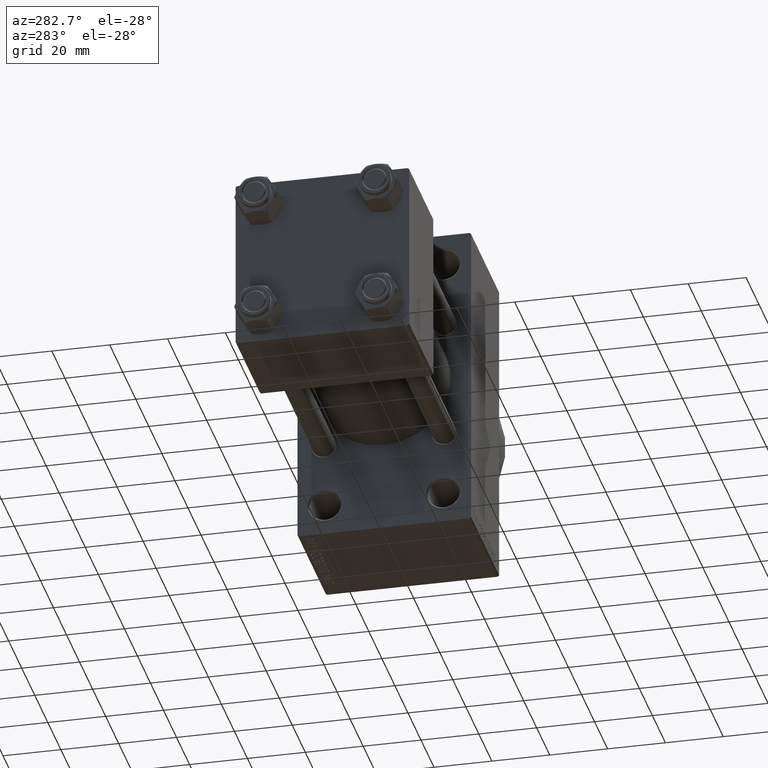
[diagram: clean part render]
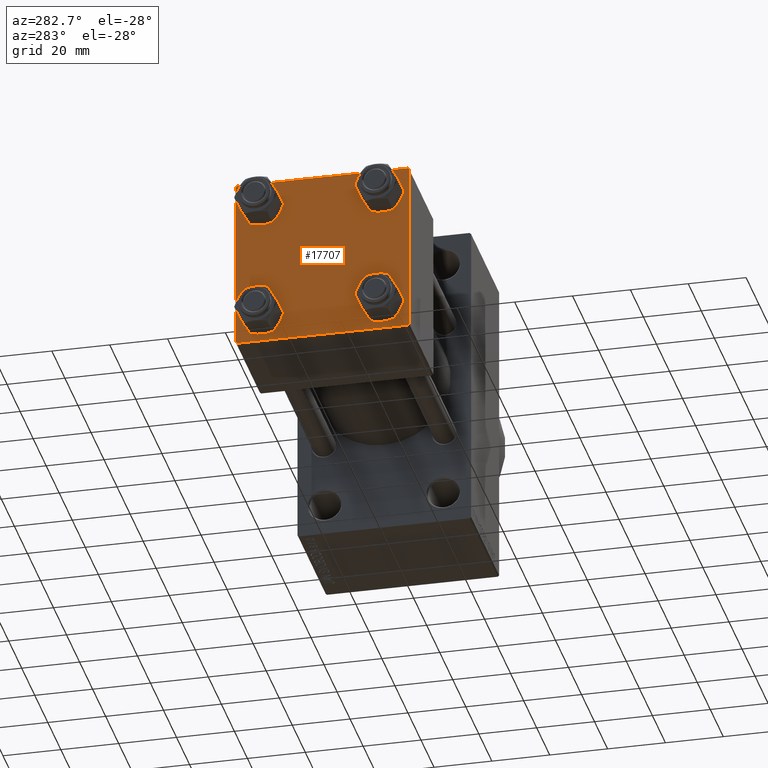
[diagram: same view with one face highlighted and labeled with its STEP entity id]
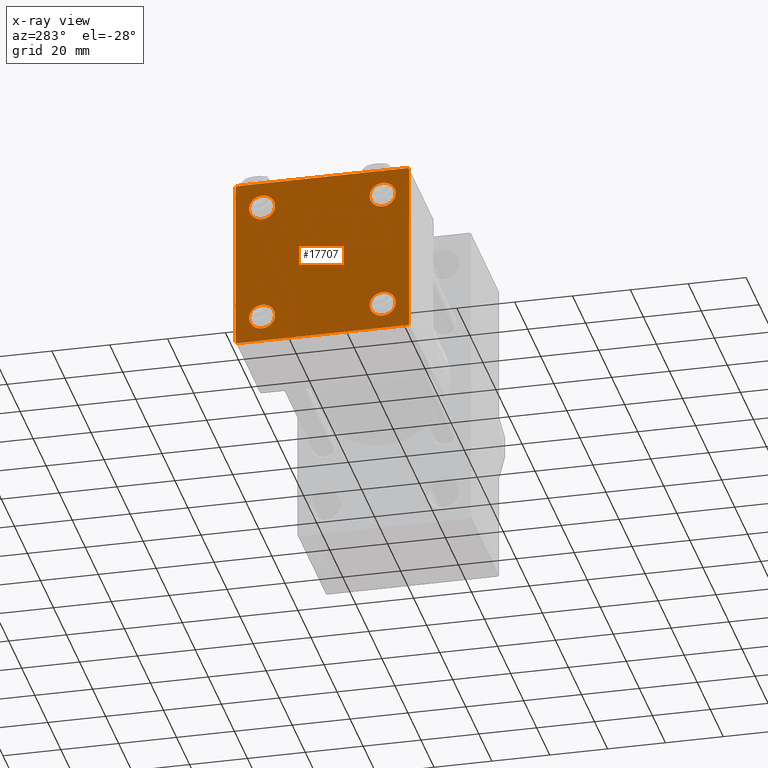
[diagram: x-ray of the same camera — body ghosted, the highlighted face saturated]
A machine part, auxiliary view. The second image highlights one B-rep face of the part: STEP entity #17707.
The next image is the same camera in x-ray: the body ghosted, the highlighted face saturated — about 0% of this face is hidden behind the body in this view.
In plain terms, the highlighted planar face has unit normal (-1, 0, 0).
Its self-contained STEP definition (entity closure, byte-faithful):
#335 = CARTESIAN_POINT ( 'NONE',  ( 0.000000000000000000, -20.84999999999999076, -16.34999999999998721 ) ) ;
#385 = DIRECTION ( 'NONE',  ( 0.000000000000000000, 0.000000000000000000, 1.000000000000000000 ) ) ;
#687 = DIRECTION ( 'NONE',  ( 0.000000000000000000, 0.000000000000000000, 1.000000000000000000 ) ) ;
#866 = DIRECTION ( 'NONE',  ( 0.000000000000000000, 0.000000000000000000, 1.000000000000000000 ) ) ;
#1147 = DIRECTION ( 'NONE',  ( 0.000000000000000000, -1.000000000000000000, -1.156482317317871725E-16 ) ) ;
#1789 = CIRCLE ( 'NONE', #11806, 4.500000000000017764 ) ;
#1887 = VECTOR ( 'NONE', #27286, 1000.000000000000000 ) ;
#2800 = DIRECTION ( 'NONE',  ( 0.000000000000000000, 0.000000000000000000, 1.000000000000000000 ) ) ;
#3005 = AXIS2_PLACEMENT_3D ( 'NONE', #6793, #21475, #36218 ) ;
#3149 = VERTEX_POINT ( 'NONE', #4313 ) ;
#3723 = EDGE_CURVE ( 'NONE', #32925, #3149, #23786, .T. ) ;
#3774 = DIRECTION ( 'NONE',  ( 1.000000000000000000, -0.000000000000000000, 0.000000000000000000 ) ) ;
#3861 = AXIS2_PLACEMENT_3D ( 'NONE', #30034, #33187, #866 ) ;
#4084 = FACE_BOUND ( 'NONE', #8361, .T. ) ;
#4223 = CARTESIAN_POINT ( 'NONE',  ( 0.000000000000000000, 20.84999999999999787, 16.34999999999998366 ) ) ;
#4281 = CARTESIAN_POINT ( 'NONE',  ( 0.000000000000000000, -20.84999999999999076, 25.35000000000002274 ) ) ;
#4313 = CARTESIAN_POINT ( 'NONE',  ( 0.000000000000000000, 20.84999999999999787, -16.34999999999998366 ) ) ;
#4672 = CIRCLE ( 'NONE', #3861, 4.500000000000017764 ) ;
#4735 = AXIS2_PLACEMENT_3D ( 'NONE', #39094, #32304, #17369 ) ;
#4843 = AXIS2_PLACEMENT_3D ( 'NONE', #36812, #3774, #385 ) ;
#5232 = CARTESIAN_POINT ( 'NONE',  ( 0.000000000000000000, 20.84999999999999787, -25.35000000000001918 ) ) ;
#5752 = CIRCLE ( 'NONE', #25008, 4.500000000000017764 ) ;
#6181 = EDGE_CURVE ( 'NONE', #3149, #32925, #4672, .T. ) ;
#6516 = ORIENTED_EDGE ( 'NONE', *, *, #31361, .T. ) ;
#6710 = DIRECTION ( 'NONE',  ( 1.000000000000000000, -0.000000000000000000, 0.000000000000000000 ) ) ;
#6793 = CARTESIAN_POINT ( 'NONE',  ( 0.000000000000000000, 20.84999999999999787, -20.85000000000000142 ) ) ;
#7270 = ORIENTED_EDGE ( 'NONE', *, *, #16821, .T. ) ;
#7461 = VERTEX_POINT ( 'NONE', #335 ) ;
#7929 = FACE_BOUND ( 'NONE', #19450, .T. ) ;
#8096 = CARTESIAN_POINT ( 'NONE',  ( 0.000000000000000000, 29.99999999999999289, -29.50000000000000000 ) ) ;
#8361 = EDGE_LOOP ( 'NONE', ( #23348, #28990 ) ) ;
#8414 = PLANE ( 'NONE',  #28750 ) ;
#8842 = LINE ( 'NONE', #33705, #33368 ) ;
#8885 = CIRCLE ( 'NONE', #27318, 4.500000000000017764 ) ;
#9196 = ORIENTED_EDGE ( 'NONE', *, *, #6181, .T. ) ;
#9390 = ORIENTED_EDGE ( 'NONE', *, *, #37436, .T. ) ;
#10557 = ORIENTED_EDGE ( 'NONE', *, *, #38992, .T. ) ;
#11091 = VERTEX_POINT ( 'NONE', #26796 ) ;
#11278 = DIRECTION ( 'NONE',  ( 0.000000000000000000, 0.000000000000000000, 1.000000000000000000 ) ) ;
#11302 = FACE_OUTER_BOUND ( 'NONE', #31975, .T. ) ;
#11669 = CIRCLE ( 'NONE', #4735, 4.500000000000017764 ) ;
#11806 = AXIS2_PLACEMENT_3D ( 'NONE', #26478, #33971, #687 ) ;
#12118 = CARTESIAN_POINT ( 'NONE',  ( 0.000000000000000000, -20.84999999999999076, 20.85000000000000497 ) ) ;
#12300 = EDGE_CURVE ( 'NONE', #19313, #11091, #11669, .T. ) ;
#12337 = VERTEX_POINT ( 'NONE', #24597 ) ;
#13177 = DIRECTION ( 'NONE',  ( 0.000000000000000000, 0.7071067811865474617, -0.7071067811865474617 ) ) ;
#14128 = LINE ( 'NONE', #46928, #14144 ) ;
#14144 = VECTOR ( 'NONE', #13177, 1000.000000000000114 ) ;
#14412 = CARTESIAN_POINT ( 'NONE',  ( 0.000000000000000000, -20.84999999999999076, -25.35000000000002274 ) ) ;
#15613 = CARTESIAN_POINT ( 'NONE',  ( 0.000000000000000000, -20.84999999999999076, 16.34999999999998721 ) ) ;
#16821 = EDGE_CURVE ( 'NONE', #11091, #19313, #1789, .T. ) ;
#17135 = CIRCLE ( 'NONE', #4843, 4.500000000000017764 ) ;
#17369 = DIRECTION ( 'NONE',  ( 0.000000000000000000, 0.000000000000000000, 1.000000000000000000 ) ) ;
#17707 = ADVANCED_FACE ( 'NONE', ( #22380, #4084, #7929, #41443, #11302 ), #8414, .T. ) ;
#19023 = DIRECTION ( 'NONE',  ( -0.000000000000000000, 0.000000000000000000, 1.000000000000000000 ) ) ;
#19313 = VERTEX_POINT ( 'NONE', #4223 ) ;
#19450 = EDGE_LOOP ( 'NONE', ( #9196, #45382 ) ) ;
#19907 = EDGE_CURVE ( 'NONE', #26064, #26200, #44132, .T. ) ;
#20063 = LINE ( 'NONE', #35497, #39416 ) ;
#20164 = ORIENTED_EDGE ( 'NONE', *, *, #34872, .T. ) ;
#20508 = EDGE_CURVE ( 'NONE', #12337, #26200, #34790, .T. ) ;
#20534 = LINE ( 'NONE', #31618, #35829 ) ;
#20757 = VERTEX_POINT ( 'NONE', #26048 ) ;
#20848 = CARTESIAN_POINT ( 'NONE',  ( 0.000000000000000000, -29.50000000000000000, -30.00000000000000711 ) ) ;
#21377 = EDGE_CURVE ( 'NONE', #23352, #32237, #20534, .T. ) ;
#21475 = DIRECTION ( 'NONE',  ( 1.000000000000000000, -0.000000000000000000, 0.000000000000000000 ) ) ;
#21599 = EDGE_LOOP ( 'NONE', ( #34728, #9390 ) ) ;
#22380 = FACE_BOUND ( 'NONE', #21599, .T. ) ;
#23103 = CARTESIAN_POINT ( 'NONE',  ( 0.000000000000000000, 0.000000000000000000, 0.000000000000000000 ) ) ;
#23348 = ORIENTED_EDGE ( 'NONE', *, *, #31851, .T. ) ;
#23352 = VERTEX_POINT ( 'NONE', #8096 ) ;
#23786 = CIRCLE ( 'NONE', #3005, 4.500000000000017764 ) ;
#24597 = CARTESIAN_POINT ( 'NONE',  ( 0.000000000000000000, -30.00000000000000000, 29.49999999999999289 ) ) ;
#25004 = VECTOR ( 'NONE', #47642, 1000.000000000000114 ) ;
#25008 = AXIS2_PLACEMENT_3D ( 'NONE', #47696, #6710, #11278 ) ;
#25034 = ORIENTED_EDGE ( 'NONE', *, *, #19907, .T. ) ;
#25688 = VERTEX_POINT ( 'NONE', #37680 ) ;
#25800 = CARTESIAN_POINT ( 'NONE',  ( 0.000000000000000000, -29.75000000000001066, -29.75000000000001066 ) ) ;
#26048 = CARTESIAN_POINT ( 'NONE',  ( 0.000000000000000000, -29.49999999999998579, 29.99999999999999289 ) ) ;
#26064 = VERTEX_POINT ( 'NONE', #20848 ) ;
#26200 = VERTEX_POINT ( 'NONE', #47622 ) ;
#26478 = CARTESIAN_POINT ( 'NONE',  ( 0.000000000000000000, 20.84999999999999787, 20.85000000000000142 ) ) ;
#26778 = VERTEX_POINT ( 'NONE', #28683 ) ;
#26796 = CARTESIAN_POINT ( 'NONE',  ( 0.000000000000000000, 20.84999999999999787, 25.35000000000001918 ) ) ;
#26807 = DIRECTION ( 'NONE',  ( 1.000000000000000000, -0.000000000000000000, 0.000000000000000000 ) ) ;
#27286 = DIRECTION ( 'NONE',  ( 0.000000000000000000, 0.000000000000000000, -1.000000000000000000 ) ) ;
#27318 = AXIS2_PLACEMENT_3D ( 'NONE', #12118, #26807, #41533 ) ;
#27991 = CARTESIAN_POINT ( 'NONE',  ( 0.000000000000000000, -30.00000000000000000, 29.99999999999999289 ) ) ;
#28683 = CARTESIAN_POINT ( 'NONE',  ( 0.000000000000000000, 29.99999999999999289, 29.50000000000000000 ) ) ;
#28750 = AXIS2_PLACEMENT_3D ( 'NONE', #23103, #44825, #19023 ) ;
#28860 = AXIS2_PLACEMENT_3D ( 'NONE', #32441, #47155, #2800 ) ;
#28990 = ORIENTED_EDGE ( 'NONE', *, *, #42105, .T. ) ;
#29351 = ORIENTED_EDGE ( 'NONE', *, *, #32838, .F. ) ;
#29839 = LINE ( 'NONE', #40936, #30426 ) ;
#30034 = CARTESIAN_POINT ( 'NONE',  ( 0.000000000000000000, 20.84999999999999787, -20.85000000000000142 ) ) ;
#30426 = VECTOR ( 'NONE', #1147, 1000.000000000000000 ) ;
#31361 = EDGE_CURVE ( 'NONE', #26778, #23352, #20063, .T. ) ;
#31618 = CARTESIAN_POINT ( 'NONE',  ( 0.000000000000000000, 29.74999999999957723, -29.75000000000040501 ) ) ;
#31851 = EDGE_CURVE ( 'NONE', #7461, #40999, #17135, .T. ) ;
#31975 = EDGE_LOOP ( 'NONE', ( #6516, #42913, #10557, #25034, #42667, #40949, #29351, #20164 ) ) ;
#32034 = ORIENTED_EDGE ( 'NONE', *, *, #12300, .T. ) ;
#32237 = VERTEX_POINT ( 'NONE', #36280 ) ;
#32304 = DIRECTION ( 'NONE',  ( 1.000000000000000000, -0.000000000000000000, 0.000000000000000000 ) ) ;
#32441 = CARTESIAN_POINT ( 'NONE',  ( 0.000000000000000000, -20.84999999999999076, -20.85000000000000497 ) ) ;
#32838 = EDGE_CURVE ( 'NONE', #25688, #20757, #8842, .T. ) ;
#32925 = VERTEX_POINT ( 'NONE', #5232 ) ;
#33187 = DIRECTION ( 'NONE',  ( 1.000000000000000000, -0.000000000000000000, 0.000000000000000000 ) ) ;
#33368 = VECTOR ( 'NONE', #37327, 1000.000000000000000 ) ;
#33705 = CARTESIAN_POINT ( 'NONE',  ( 0.000000000000000000, 29.99999999999999289, 30.00000000000000000 ) ) ;
#33971 = DIRECTION ( 'NONE',  ( 1.000000000000000000, -0.000000000000000000, 0.000000000000000000 ) ) ;
#34728 = ORIENTED_EDGE ( 'NONE', *, *, #41748, .T. ) ;
#34790 = LINE ( 'NONE', #27991, #1887 ) ;
#34872 = EDGE_CURVE ( 'NONE', #25688, #26778, #14128, .T. ) ;
#35270 = DIRECTION ( 'NONE',  ( -0.000000000000000000, -0.7071067811865574537, -0.7071067811865376918 ) ) ;
#35497 = CARTESIAN_POINT ( 'NONE',  ( 0.000000000000000000, 29.99999999999999289, 30.00000000000000000 ) ) ;
#35829 = VECTOR ( 'NONE', #35270, 999.9999999999998863 ) ;
#36218 = DIRECTION ( 'NONE',  ( 0.000000000000000000, 0.000000000000000000, 1.000000000000000000 ) ) ;
#36280 = CARTESIAN_POINT ( 'NONE',  ( 0.000000000000000000, 29.49999999999997868, -30.00000000000000000 ) ) ;
#36812 = CARTESIAN_POINT ( 'NONE',  ( 0.000000000000000000, -20.84999999999999076, -20.85000000000000497 ) ) ;
#37327 = DIRECTION ( 'NONE',  ( 0.000000000000000000, -1.000000000000000000, -1.156482317317871725E-16 ) ) ;
#37436 = EDGE_CURVE ( 'NONE', #38004, #43804, #5752, .T. ) ;
#37680 = CARTESIAN_POINT ( 'NONE',  ( 0.000000000000000000, 29.49999999999999289, 30.00000000000000000 ) ) ;
#38004 = VERTEX_POINT ( 'NONE', #15613 ) ;
#38992 = EDGE_CURVE ( 'NONE', #32237, #26064, #29839, .T. ) ;
#39094 = CARTESIAN_POINT ( 'NONE',  ( 0.000000000000000000, 20.84999999999999787, 20.85000000000000142 ) ) ;
#39416 = VECTOR ( 'NONE', #42259, 1000.000000000000000 ) ;
#39649 = CIRCLE ( 'NONE', #28860, 4.500000000000017764 ) ;
#39979 = EDGE_LOOP ( 'NONE', ( #7270, #32034 ) ) ;
#40875 = LINE ( 'NONE', #44740, #25004 ) ;
#40936 = CARTESIAN_POINT ( 'NONE',  ( 0.000000000000000000, 29.99999999999999289, -30.00000000000000000 ) ) ;
#40949 = ORIENTED_EDGE ( 'NONE', *, *, #42265, .T. ) ;
#40999 = VERTEX_POINT ( 'NONE', #14412 ) ;
#41169 = VECTOR ( 'NONE', #41232, 1000.000000000000114 ) ;
#41232 = DIRECTION ( 'NONE',  ( 0.000000000000000000, -0.7071067811865474617, 0.7071067811865474617 ) ) ;
#41443 = FACE_BOUND ( 'NONE', #39979, .T. ) ;
#41533 = DIRECTION ( 'NONE',  ( 0.000000000000000000, 0.000000000000000000, 1.000000000000000000 ) ) ;
#41748 = EDGE_CURVE ( 'NONE', #43804, #38004, #8885, .T. ) ;
#42105 = EDGE_CURVE ( 'NONE', #40999, #7461, #39649, .T. ) ;
#42259 = DIRECTION ( 'NONE',  ( 0.000000000000000000, 0.000000000000000000, -1.000000000000000000 ) ) ;
#42265 = EDGE_CURVE ( 'NONE', #12337, #20757, #40875, .T. ) ;
#42667 = ORIENTED_EDGE ( 'NONE', *, *, #20508, .F. ) ;
#42913 = ORIENTED_EDGE ( 'NONE', *, *, #21377, .T. ) ;
#43804 = VERTEX_POINT ( 'NONE', #4281 ) ;
#44132 = LINE ( 'NONE', #25800, #41169 ) ;
#44740 = CARTESIAN_POINT ( 'NONE',  ( -0.000000000000000000, -29.74999999999999645, 29.74999999999999645 ) ) ;
#44825 = DIRECTION ( 'NONE',  ( -1.000000000000000000, 0.000000000000000000, -0.000000000000000000 ) ) ;
#45382 = ORIENTED_EDGE ( 'NONE', *, *, #3723, .T. ) ;
#46928 = CARTESIAN_POINT ( 'NONE',  ( 0.000000000000000000, 29.74999999999999645, 29.74999999999999645 ) ) ;
#47155 = DIRECTION ( 'NONE',  ( 1.000000000000000000, -0.000000000000000000, 0.000000000000000000 ) ) ;
#47622 = CARTESIAN_POINT ( 'NONE',  ( 0.000000000000000000, -30.00000000000000000, -29.50000000000001776 ) ) ;
#47642 = DIRECTION ( 'NONE',  ( -0.000000000000000000, 0.7071067811865474617, 0.7071067811865474617 ) ) ;
#47696 = CARTESIAN_POINT ( 'NONE',  ( 0.000000000000000000, -20.84999999999999076, 20.85000000000000497 ) ) ;